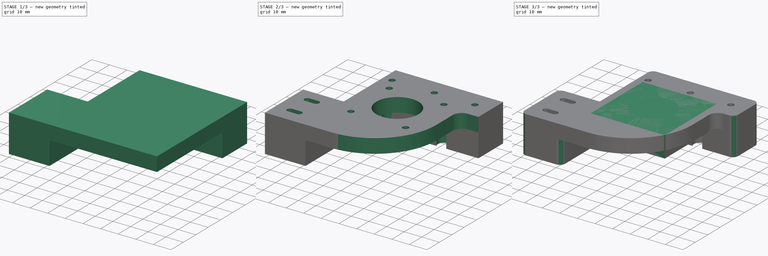
[diagram: build sequence overview — one tinted view per stage of 3, left to right]
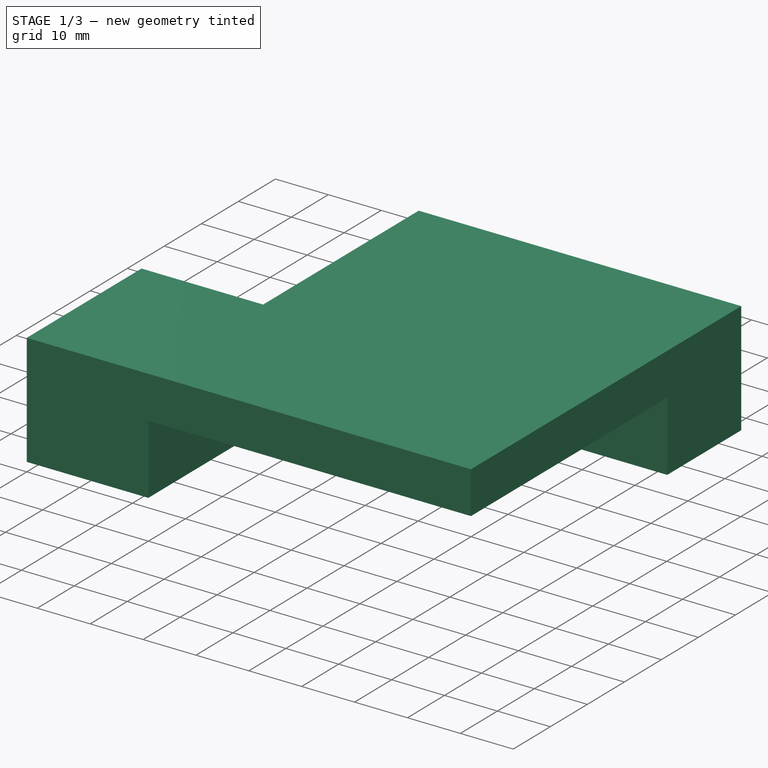
[diagram: stage 1 of 3 — iso view after this stage's code; geometry added in this stage tinted green]
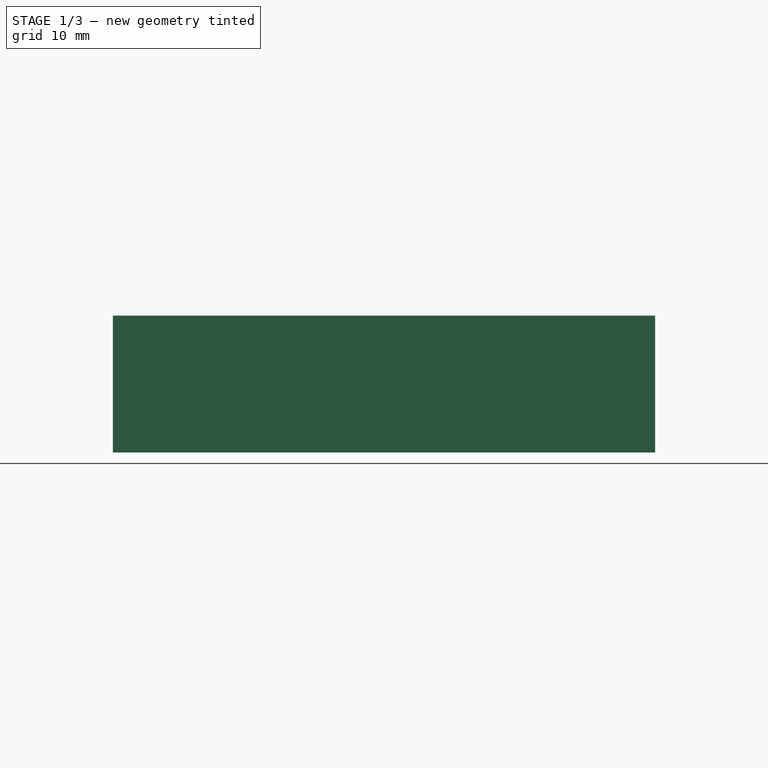
[diagram: stage 1 of 3 — front view after this stage's code; geometry added in this stage tinted green]
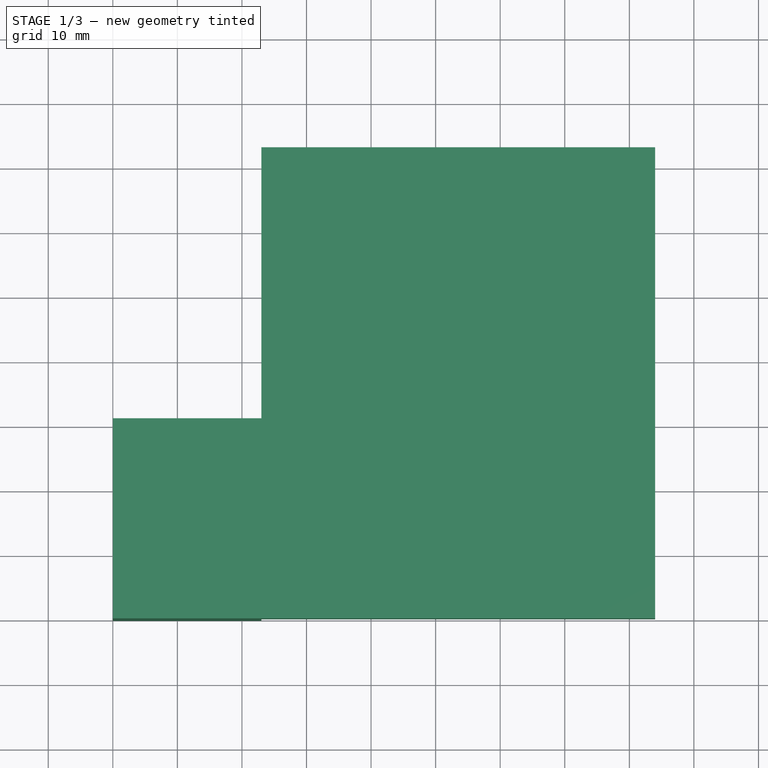
[diagram: stage 1 of 3 — top view after this stage's code; geometry added in this stage tinted green]
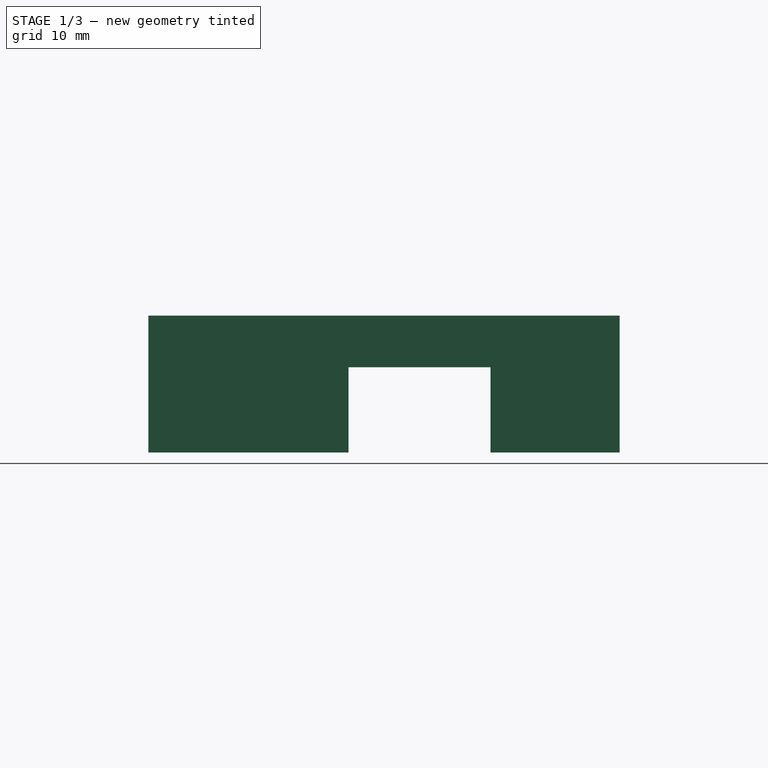
[diagram: stage 1 of 3 — right view after this stage's code; geometry added in this stage tinted green]
FCSTD DOCUMENT  (FreeCAD 0.16R6706 (Git))
Label: nema-left
License: All rights reserved
LicenseURL: http://en.wikipedia.org/wiki/All_rights_reserved
objects: Sketcher::SketchObject×4, PartDesign::Pad×2, PartDesign::Pocket×2, PartDesign::Fillet×2, Part::Box×1
note: 15 computed .brp shape members not serialized (recipe doc carries the construction recipe); baked Part::Feature solids carry a one-line shape summary decoded from their .brp

FEATURE [Sketcher::SketchObject] Sketch003  label="initial pad"
  sketch-geometry (6):
    g0: LineSegment StartX=0 StartY=0 StartZ=0 EndX=0 EndY=31 EndZ=0
    g1: LineSegment StartX=0 StartY=31 StartZ=0 EndX=23 EndY=31 EndZ=0
    g2: LineSegment StartX=23 StartY=31 StartZ=0 EndX=23 EndY=73 EndZ=0
    g3: LineSegment StartX=23 StartY=73 StartZ=0 EndX=84 EndY=73 EndZ=0
    g4: LineSegment StartX=84 StartY=73 StartZ=0 EndX=84 EndY=0 EndZ=0
    g5: LineSegment StartX=84 StartY=0 StartZ=0 EndX=0 EndY=0 EndZ=0
  constraints (18):
    c: PointOnObject(g0,g-2)
    c: Coincident(g0,g1)
    c: Coincident(g1,g2)
    c: Vertical(g2)
    c: Coincident(g2,g3)
    c: Horizontal(g3)
    c: Coincident(g3,g4)
    c: PointOnObject(g4,g-1)
    c: Vertical(g4)
    c: Coincident(g4,g5)
    c: Coincident(g5,g-1)
    c: Perpendicular(g1,g0)
    c: Perpendicular(g0,g5)
    c: Distance(g4) = 73
    c: Distance(g3) = 61
    c: Distance(g0) = 31
    c: Coincident(g0,g-1)
    c: Distance(g1) = 23
FEATURE [PartDesign::Pad] Pad
  Length = 8
  Length2 = 100
  Sketch = -> Sketch003
  Type = 0
FEATURE [Sketcher::SketchObject] Sketch002  label="pads"
  Placement = pos=(0,0,0) rot=(1,0,0;3.14159rad)
  Support = -> Pad [Face7]
  sketch-geometry (8):
    g0: LineSegment StartX=0 StartY=0 StartZ=0 EndX=23 EndY=0 EndZ=0
    g1: LineSegment StartX=23 StartY=0 StartZ=0 EndX=23 EndY=-31 EndZ=0
    g2: LineSegment StartX=23 StartY=-31 StartZ=0 EndX=0 EndY=-31 EndZ=0
    g3: LineSegment StartX=0 StartY=-31 StartZ=0 EndX=0 EndY=0 EndZ=0
    g4: LineSegment StartX=23 StartY=-53 StartZ=0 EndX=84 EndY=-53 EndZ=0
    g5: LineSegment StartX=84 StartY=-53 StartZ=0 EndX=84 EndY=-73 EndZ=0
    g6: LineSegment StartX=84 StartY=-73 StartZ=0 EndX=23 EndY=-73 EndZ=0
    g7: LineSegment StartX=23 StartY=-73 StartZ=0 EndX=23 EndY=-53 EndZ=0
  constraints (24):
    c: Coincident(g0,g1)
    c: Coincident(g1,g2)
    c: Coincident(g2,g3)
    c: Coincident(g3,g0)
    c: Horizontal(g0)
    c: Horizontal(g2)
    c: Vertical(g1)
    c: Vertical(g3)
    c: Coincident(g4,g5)
    c: Coincident(g5,g6)
    c: Coincident(g6,g7)
    c: Coincident(g7,g4)
    c: Horizontal(g4)
    c: Horizontal(g6)
    c: Vertical(g5)
    c: Vertical(g7)
    c: DistanceX(g-2,g0) = 0
    c: DistanceY(g-1,g0) = 0
    c: Distance(g2) = 23
    c: Distance(g1) = 31
    c: Distance(g7) = 20
    c: Distance(g6) = 61
    c: DistanceY(g-1,g4) = -53
    c: DistanceX(g-2,g6) = 23
FEATURE [PartDesign::Pad] Pad001
  Length = 13.2
  Length2 = 100
  Sketch = -> Sketch002
  Type = 0
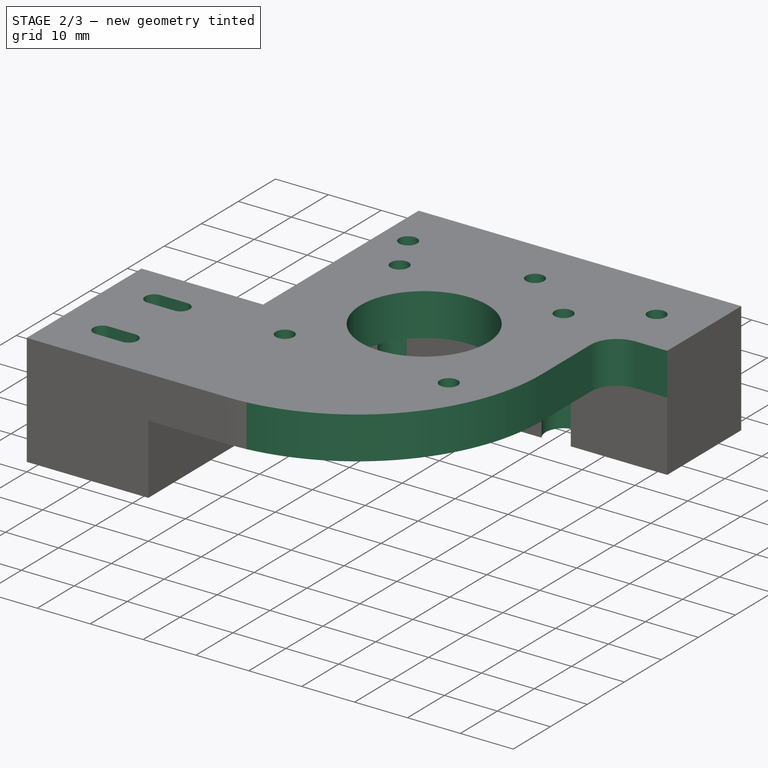
[diagram: stage 2 of 3 — iso view after this stage's code; geometry added in this stage tinted green]
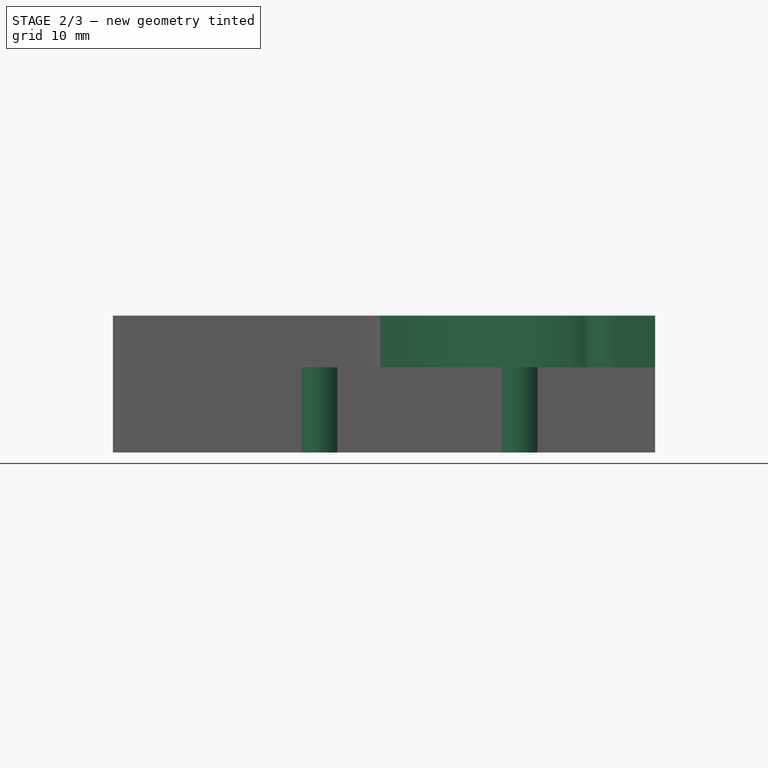
[diagram: stage 2 of 3 — front view after this stage's code; geometry added in this stage tinted green]
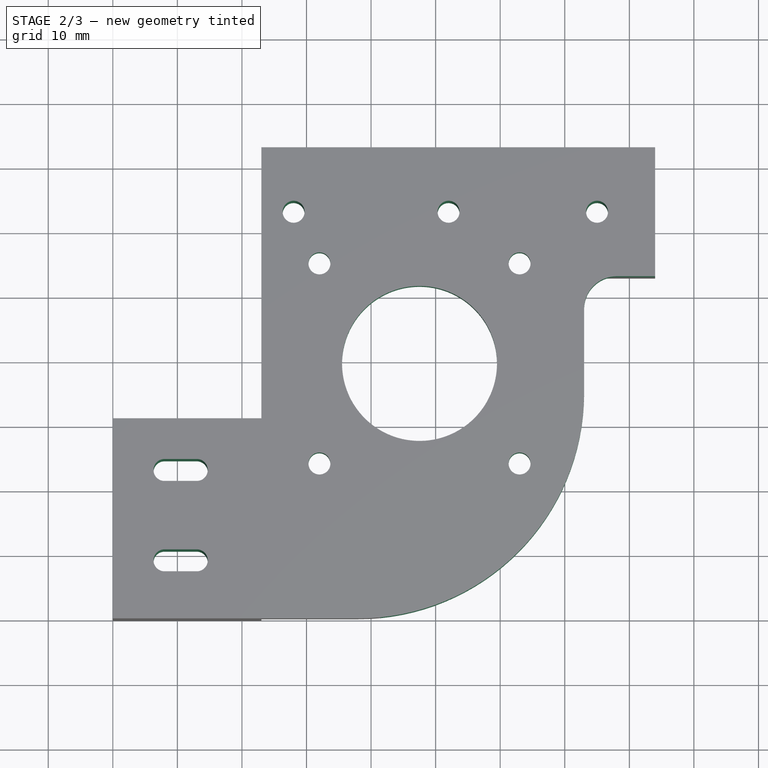
[diagram: stage 2 of 3 — top view after this stage's code; geometry added in this stage tinted green]
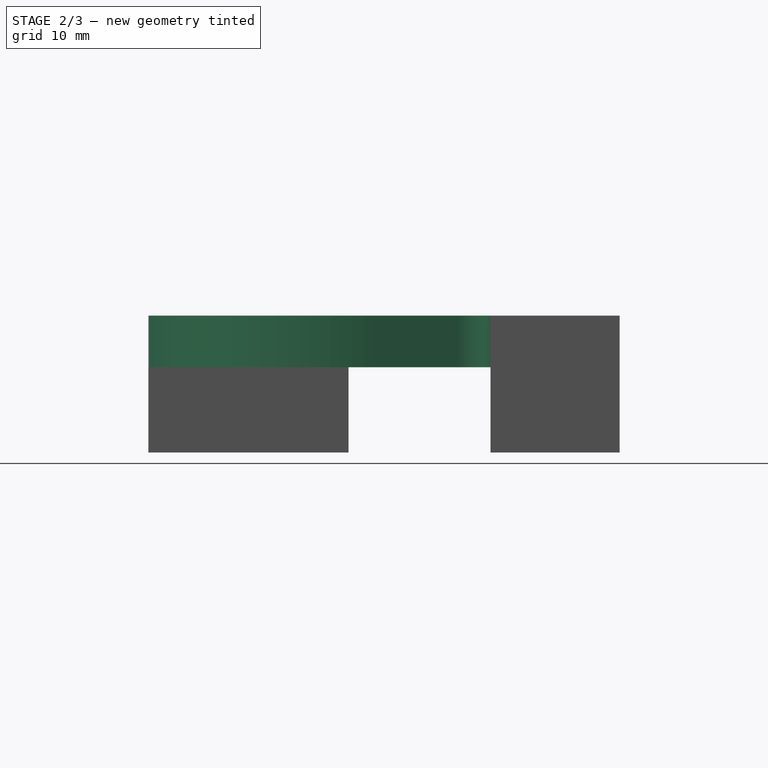
[diagram: stage 2 of 3 — right view after this stage's code; geometry added in this stage tinted green]
FEATURE [Sketcher::SketchObject] Sketch  label="motor mnt holes"
  Placement = pos=(0,0,8) rot=(0,0,1;0rad)
  Support = -> Pad001 [Face1]
  sketch-geometry (21):
    g0: Circle CenterX=32 CenterY=55 CenterZ=0 NormalX=0 NormalY=0 NormalZ=1 Radius=1.7
    g1: Circle CenterX=63 CenterY=55 CenterZ=0 NormalX=0 NormalY=0 NormalZ=1 Radius=1.7
    g2: Circle CenterX=63 CenterY=24 CenterZ=0 NormalX=0 NormalY=0 NormalZ=1 Radius=1.7
    g3: Circle CenterX=32 CenterY=24 CenterZ=0 NormalX=0 NormalY=0 NormalZ=1 Radius=1.7
    g4: Circle CenterX=47.5 CenterY=39.5 CenterZ=0 NormalX=0 NormalY=0 NormalZ=1 Radius=12
    g5: Circle CenterX=28 CenterY=63 CenterZ=0 NormalX=0 NormalY=0 NormalZ=1 Radius=1.7
    g6: Circle CenterX=75 CenterY=63 CenterZ=0 NormalX=0 NormalY=0 NormalZ=1 Radius=1.7
    g7: ArcOfCircle CenterX=8 CenterY=23 CenterZ=0 NormalX=0 NormalY=0 NormalZ=1 Radius=1.7 StartAngle=1.5708 EndAngle=4.71239
    g8: ArcOfCircle CenterX=13 CenterY=23 CenterZ=0 NormalX=0 NormalY=0 NormalZ=1 Radius=1.7 StartAngle=4.71239 EndAngle=7.85398
    g9: LineSegment StartX=8 StartY=21.3 StartZ=0 EndX=13 EndY=21.3 EndZ=0
    g10: LineSegment StartX=8 StartY=24.7 StartZ=0 EndX=13 EndY=24.7 EndZ=0
    g11: LineSegment StartX=78 StartY=53 StartZ=0 EndX=91.8 EndY=53 EndZ=0
    g12: LineSegment StartX=91.8 StartY=53 StartZ=0 EndX=91.8 EndY=-5.94105 EndZ=0
    g13: LineSegment StartX=91.8 StartY=-5.94105 StartZ=0 EndX=73 EndY=-5.94105 EndZ=0
    g14: LineSegment StartX=73 StartY=-5.94105 StartZ=0 EndX=73 EndY=48 EndZ=0
    g15: ArcOfCircle CenterX=78 CenterY=48 CenterZ=0 NormalX=0 NormalY=0 NormalZ=1 Radius=5 StartAngle=1.5708 EndAngle=3.14159
    g16: Circle CenterX=52 CenterY=63 CenterZ=0 NormalX=0 NormalY=0 NormalZ=1 Radius=1.7
    g17: ArcOfCircle CenterX=8 CenterY=9 CenterZ=0 NormalX=0 NormalY=0 NormalZ=1 Radius=1.7 StartAngle=1.5708 EndAngle=4.71239
    g18: ArcOfCircle CenterX=13 CenterY=9 CenterZ=0 NormalX=0 NormalY=0 NormalZ=1 Radius=1.7 StartAngle=4.71239 EndAngle=7.85398
    g19: LineSegment StartX=8 StartY=7.3 StartZ=0 EndX=13 EndY=7.3 EndZ=0
    g20: LineSegment StartX=8 StartY=10.7 StartZ=0 EndX=13 EndY=10.7 EndZ=0
  constraints (56):
    c: Radius(g0) = 1.7
    c: Equal(g0,g1)
    c: Equal(g1,g2)
    c: Equal(g2,g3)
    c: Distance(g0,g1) = 31
    c: Distance(g3,g2) = 31
    c: Distance(g0,g3) = 31
    c: Distance(g1,g2) = 31
    c: Radius(g4) = 12
    c: DistanceY(g-1,g4) = 39.5
    c: DistanceY(g-1,g2) = 24
    c: DistanceY(g-1,g3) = 24
    c: Equal(g0,g5) = 1.7
    c: DistanceX(g-2,g5) = 28
    c: DistanceY(g-1,g5) = 63
    c: DistanceX(g-2,g0) = 32
    c: DistanceX(g-2,g3) = 32
    c: DistanceX(g-2,g4) = 47.5
    c: DistanceY(g-1,g6) = 63
    c: Tangent(g7,g10) = 1.5708
    c: Tangent(g7,g9) = -1.5708
    c: Tangent(g9,g8) = -1.5708
    c: Tangent(g10,g8) = 1.5708
    c: Horizontal(g9)
    c: Equal(g7,g8)
    c: Distance(g10) = 5
    c: Radius(g8) = 1.7
    c: DistanceX(g-2,g7) = 8
    c: DistanceX(g-2,g6) = 75
    c: Coincident(g11,g12)
    c: Coincident(g12,g13)
    c: Coincident(g13,g14)
    c: Horizontal(g11)
    c: Horizontal(g13)
    c: Vertical(g12)
    c: Vertical(g14)
    c: Tangent(g11,g15) = 1.5708
    c: Tangent(g14,g15) = 1.5708
    c: Radius(g15) = 5
    c: DistanceX(g-2,g13) = 73
    c: DistanceY(g-1,g11) = 53
    c: Radius(g6) = 1.7
    c: Equal(g6,g16)
    c: DistanceY(g16) = 63
    c: DistanceX(g16) = 52
    c: Tangent(g17,g20) = 1.5708
    c: Tangent(g17,g19) = -1.5708
    c: Tangent(g19,g18) = -1.5708
    c: Tangent(g20,g18) = 1.5708
    c: Horizontal(g19)
    c: Equal(g17,g18)
    c: Equal(g10,g20) = 5
    c: Equal(g8,g18) = 1.7
    c: DistanceX(g17) = 8
    c: DistanceY(g18) = 9
    c: DistanceY(g7) = 23
FEATURE [PartDesign::Pocket] Pocket
  Length = 5
  Sketch = -> Sketch
  Type = 1
FEATURE [Sketcher::SketchObject] Sketch006
  Placement = pos=(0,0,-13.2) rot=(1,0,0;3.14159rad)
  Support = -> Pocket [Face35]
  sketch-geometry (2):
    g0: Circle CenterX=63 CenterY=-55 CenterZ=0 NormalX=0 NormalY=0 NormalZ=1 Radius=3.4
    g1: Circle CenterX=32 CenterY=-55 CenterZ=0 NormalX=0 NormalY=0 NormalZ=1 Radius=3.4
  constraints (6):
    c: Radius(g1) = 3.4
    c: Equal(g0,g1)
    c: DistanceX(g-2,g1) = 32
    c: DistanceY(g-1,g1) = -55
    c: DistanceY(g-1,g0) = -55
    c: Distance(g0,g1) = 31
FEATURE [PartDesign::Pocket] Pocket001
  Length = 13.2
  Sketch = -> Sketch006
  Type = 0
FEATURE [PartDesign::Fillet] Fillet
  Base = -> Pocket001 [Edge43]
  Radius = 35
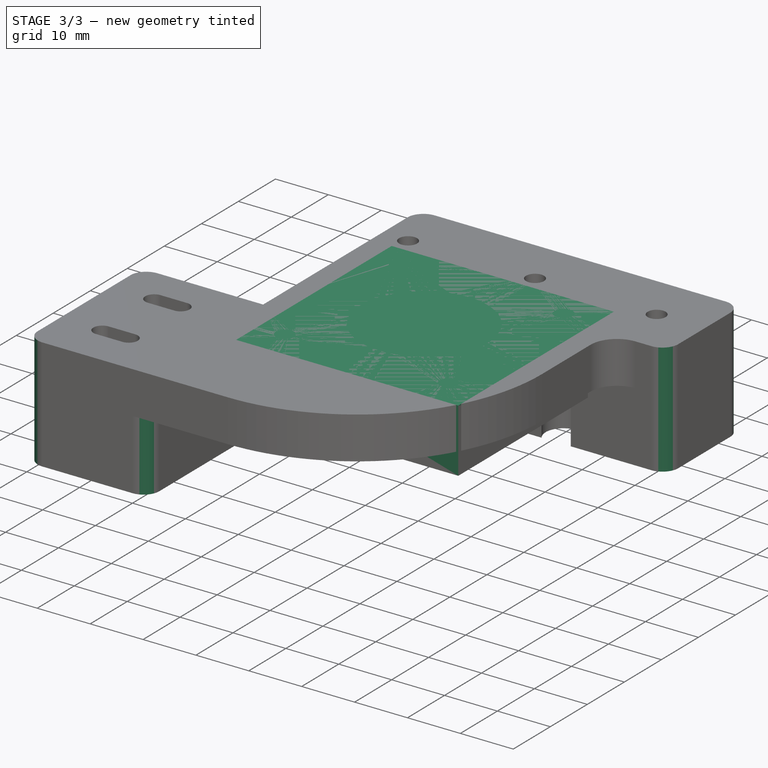
[diagram: stage 3 of 3 — iso view after this stage's code; geometry added in this stage tinted green]
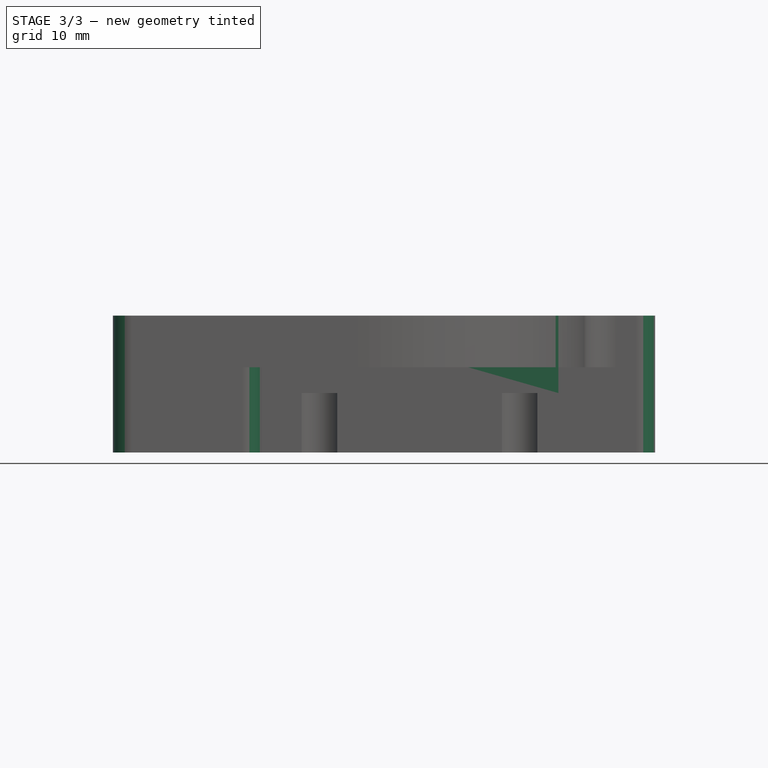
[diagram: stage 3 of 3 — front view after this stage's code; geometry added in this stage tinted green]
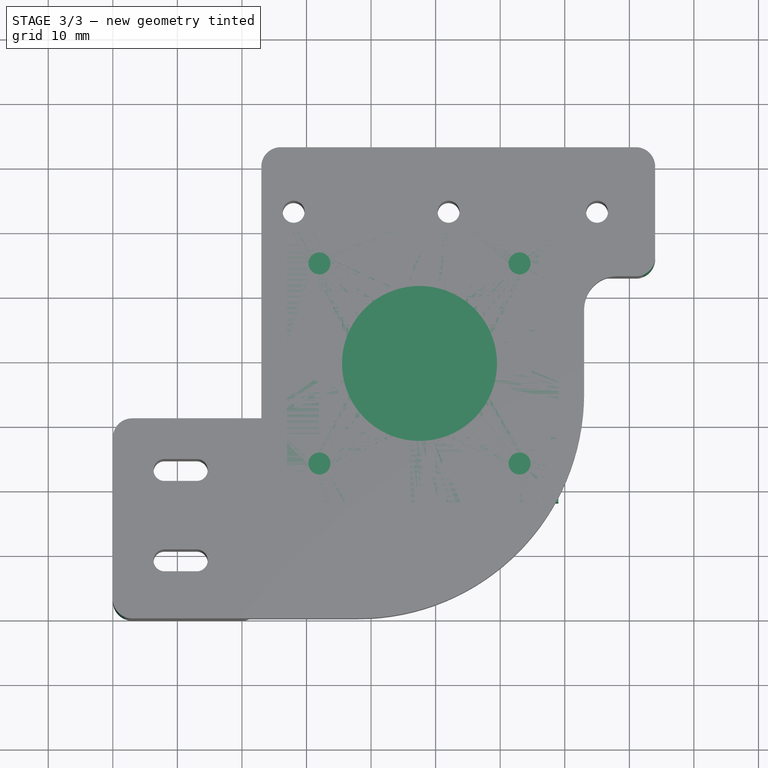
[diagram: stage 3 of 3 — top view after this stage's code; geometry added in this stage tinted green]
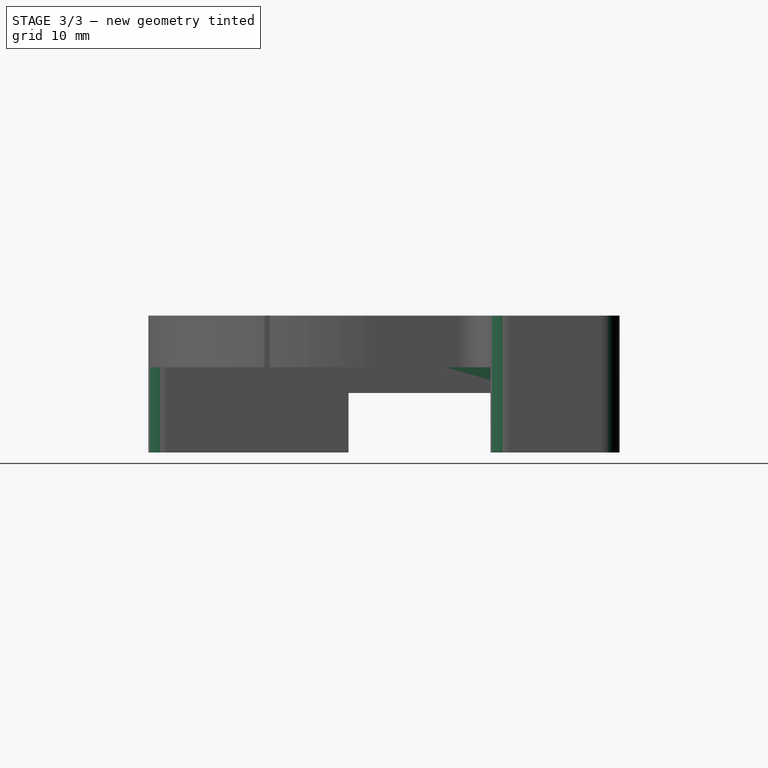
[diagram: stage 3 of 3 — right view after this stage's code; geometry added in this stage tinted green]
FEATURE [Part::Box] Box001  label="nema"
  Height = 12
  Length = 42
  Placement = pos=(27,18,-4) rot=(0,0,1;0rad)
  Width = 42
FEATURE [PartDesign::Fillet] Fillet001
  Base = -> Fillet [Edge92,Edge86,Edge37,Edge42,Edge96,Edge45,Edge89,Edge40,Edge83,Edge36]
  Radius = 3
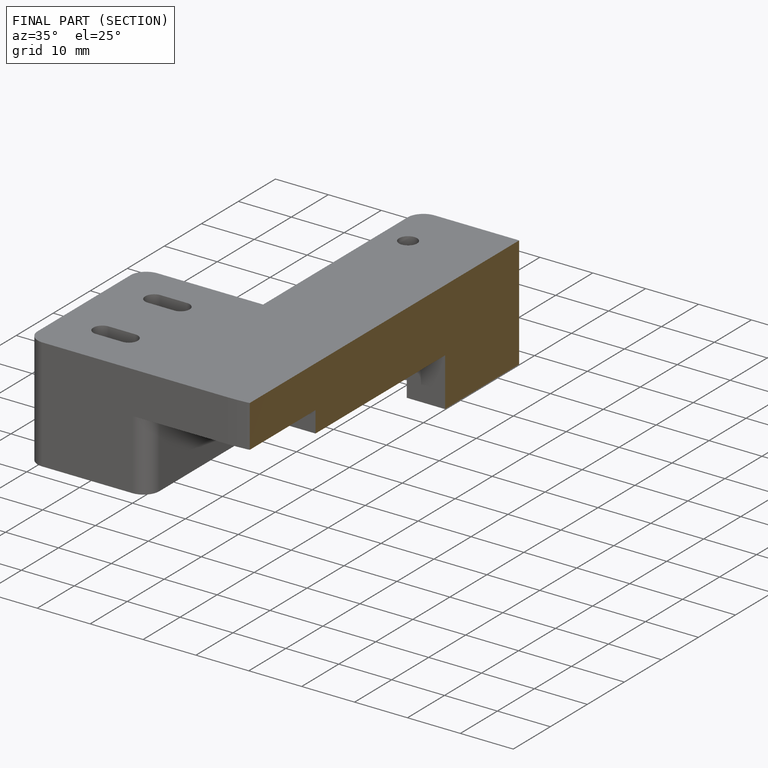
[diagram: finished part — half-section view (interior)]
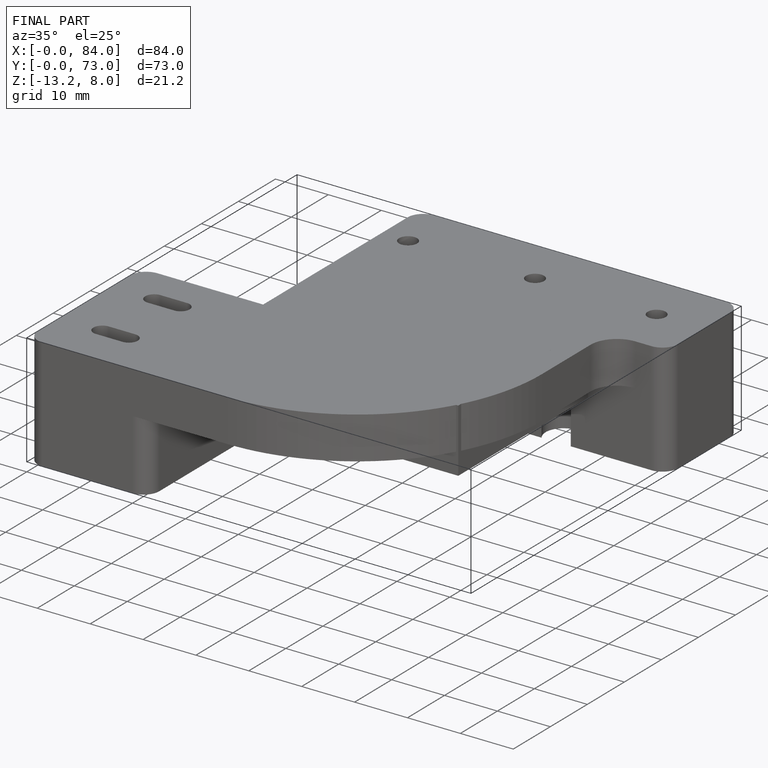
[diagram: finished part — iso view with bounding-box wireframe]
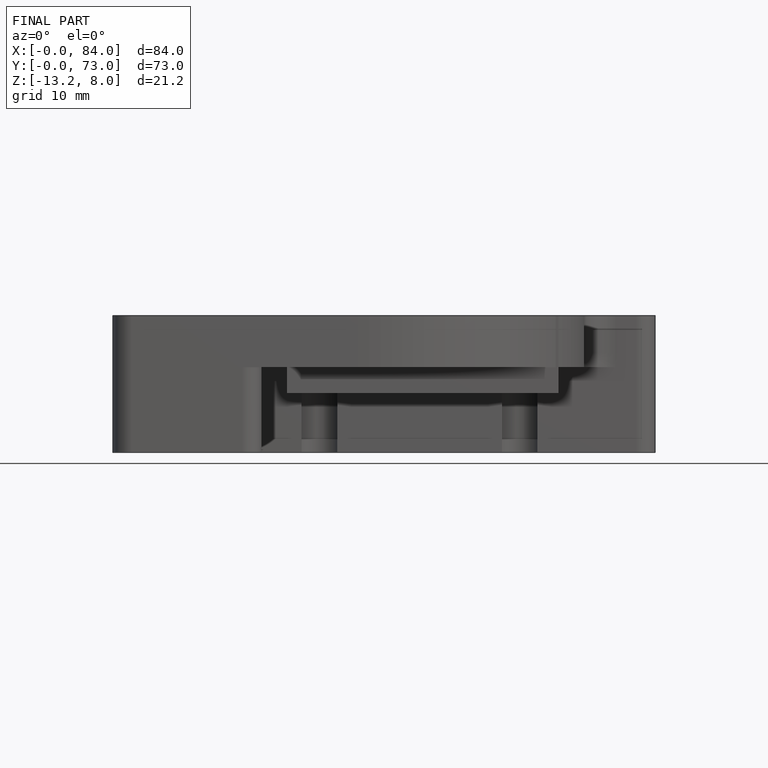
[diagram: finished part — front view with bounding-box wireframe]
